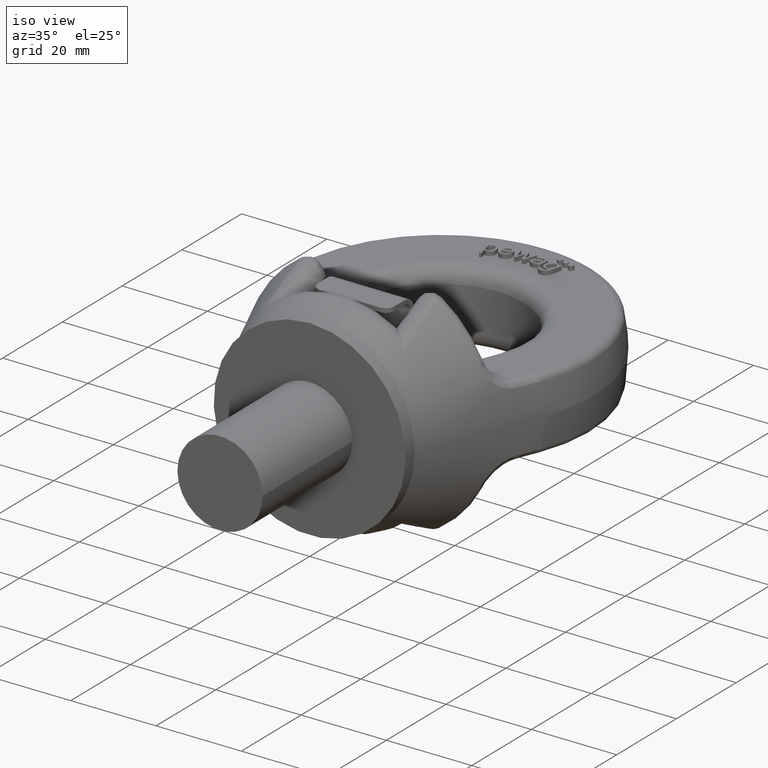
[diagram: clean part render]
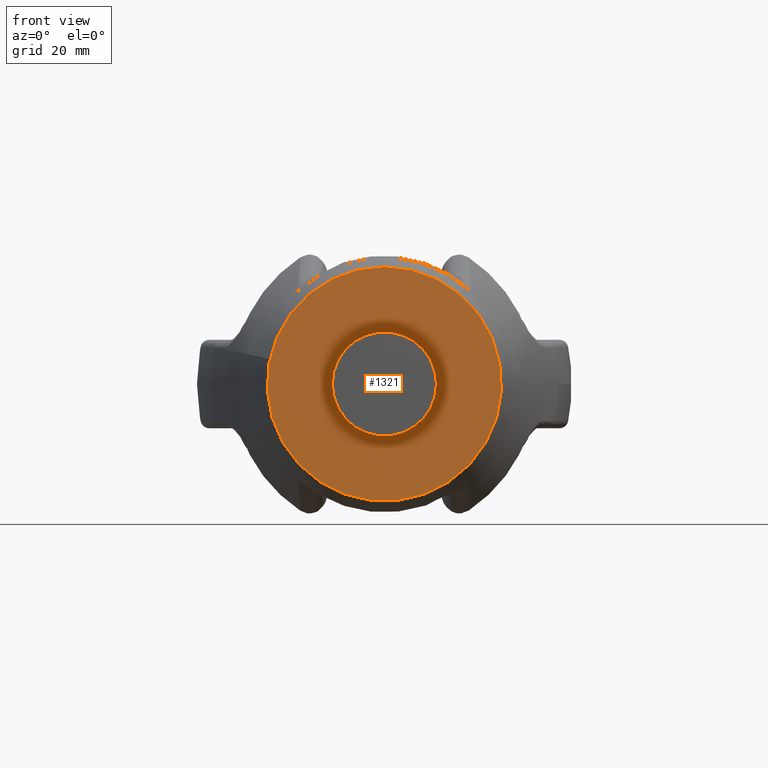
[diagram: tour spotlight — one face highlighted and labeled with its STEP entity id]
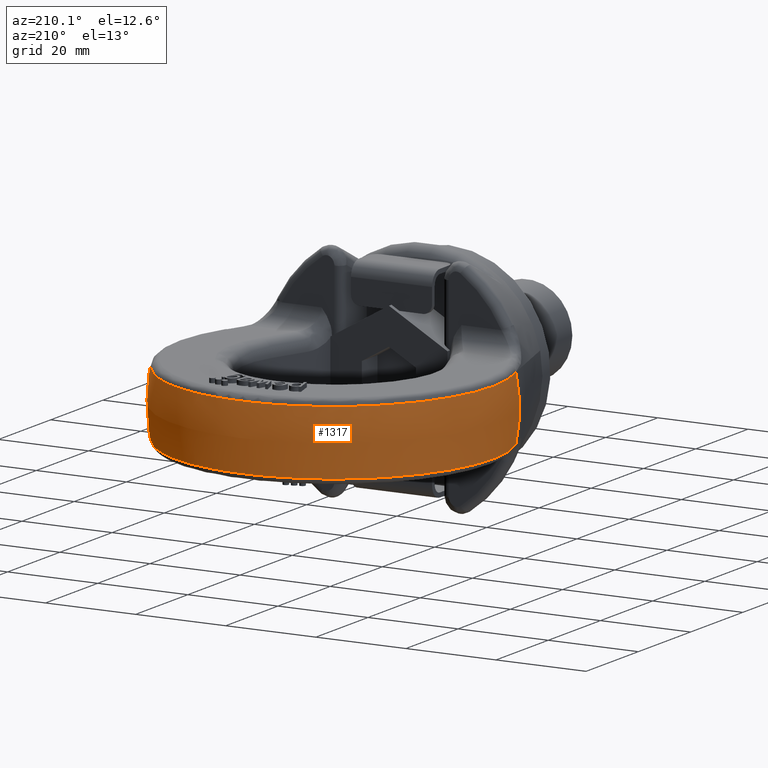
[diagram: tour spotlight — one face highlighted and labeled with its STEP entity id]
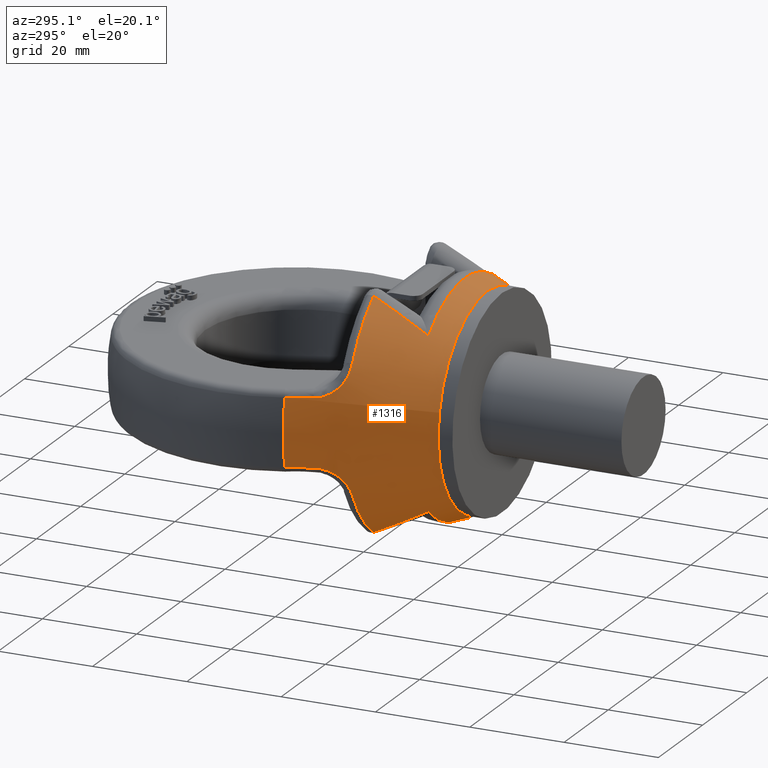
[diagram: tour spotlight — one face highlighted and labeled with its STEP entity id]
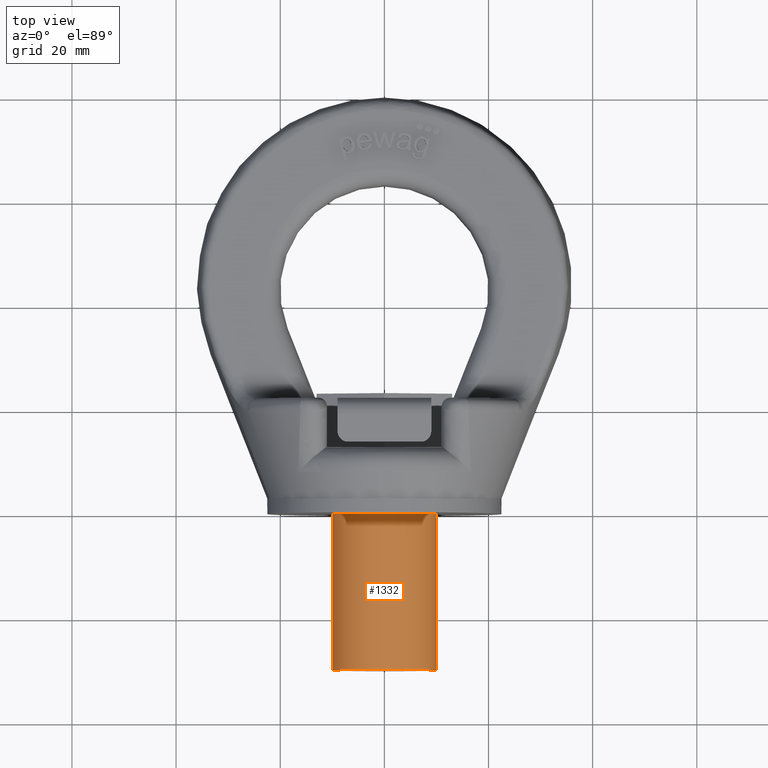
[diagram: tour spotlight — one face highlighted and labeled with its STEP entity id]
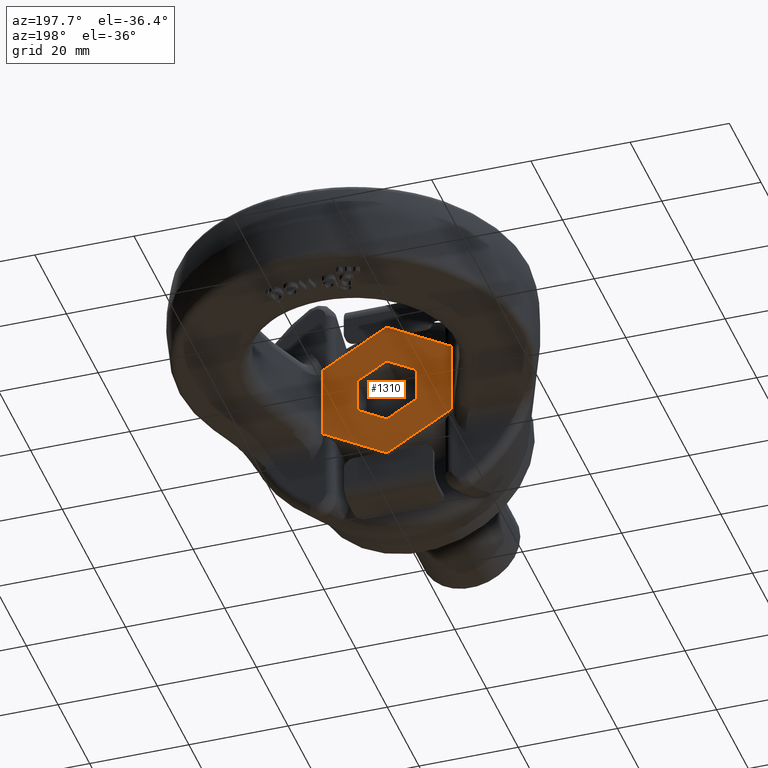
[diagram: tour spotlight — one face highlighted and labeled with its STEP entity id]
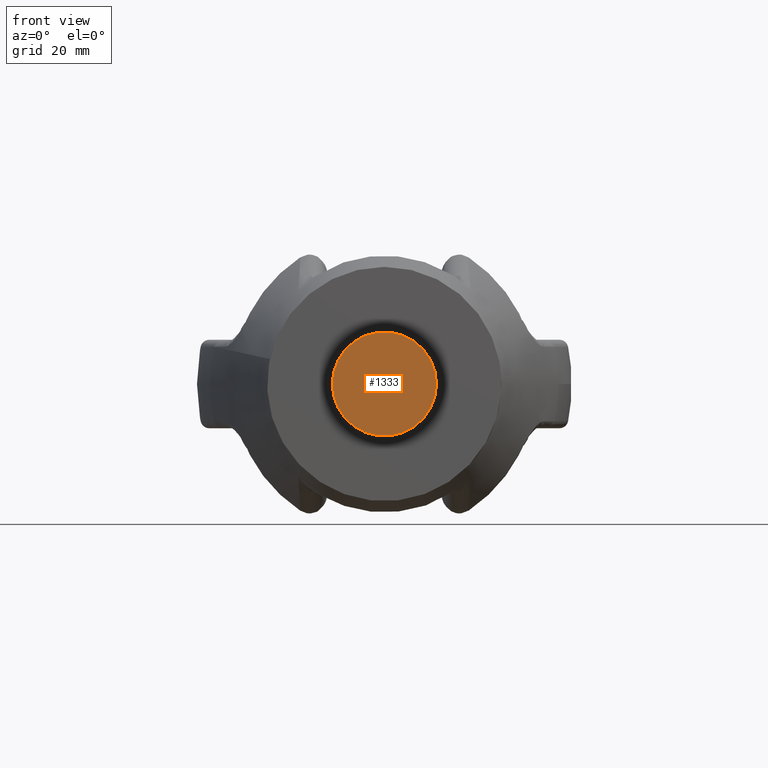
[diagram: tour spotlight — one face highlighted and labeled with its STEP entity id]
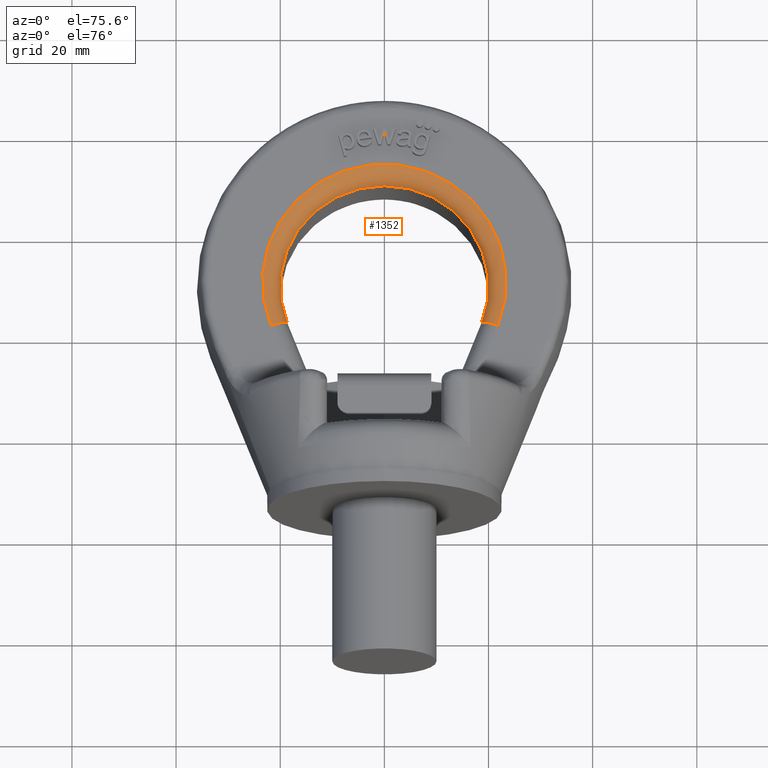
[diagram: tour spotlight — one face highlighted and labeled with its STEP entity id]
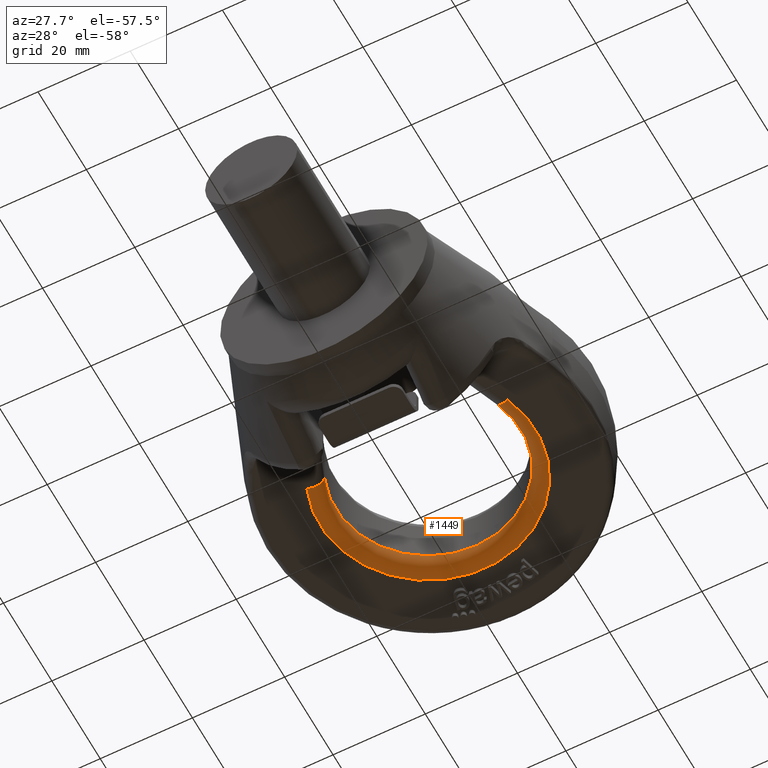
[diagram: tour spotlight — one face highlighted and labeled with its STEP entity id]
A machine part: a face-by-face anatomy tour. The part has 239 B-rep faces; the first image is the clean iso view, then the 8 largest visible faces are spotlighted one at a time (largest first), each with its STEP entity span.

Face 1 — front view, entity #1321. In plain terms, the highlighted planar face has unit normal (0, 1, 0).
Definition (entity closure, byte-faithful):
#1321=ADVANCED_FACE('',(#1769,#1770),#1557,.F.);
#1557=PLANE('',#5158);
#1689=CIRCLE('',#5156,22.5000000000001);
#1690=CIRCLE('',#5157,10.);
#1769=FACE_BOUND('',#1834,.T.);
#1770=FACE_BOUND('',#1835,.T.);
#1834=EDGE_LOOP('',(#2851));
#1835=EDGE_LOOP('',(#2852));
#2851=ORIENTED_EDGE('',*,*,#4407,.F.);
#2852=ORIENTED_EDGE('',*,*,#4408,.T.);
#4011=VERTEX_POINT('',#6879);
#4012=VERTEX_POINT('',#6881);
#4407=EDGE_CURVE('',#4011,#4011,#1689,.T.);
#4408=EDGE_CURVE('',#4012,#4012,#1690,.T.);
#5156=AXIS2_PLACEMENT_3D('',#6878,#5531,#5532);
#5157=AXIS2_PLACEMENT_3D('',#6880,#5533,#5534);
#5158=AXIS2_PLACEMENT_3D('',#6882,#5535,#5536);
#5531=DIRECTION('',(0.,1.,0.));
#5532=DIRECTION('',(0.,0.,1.));
#5533=DIRECTION('',(0.,1.,0.));
#5534=DIRECTION('',(1.,0.,6.12323399573677E-17));
#5535=DIRECTION('',(0.,1.,0.));
#5536=DIRECTION('',(0.,0.,1.));
#6878=CARTESIAN_POINT('',(-1.27403500852703E-13,0.,1.89464579043091E-14));
#6879=CARTESIAN_POINT('',(-1.27403500852703E-13,0.,22.5000000000001));
#6880=CARTESIAN_POINT('',(0.,0.,0.));
#6881=CARTESIAN_POINT('',(10.,0.,6.12323399573677E-16));
#6882=CARTESIAN_POINT('',(0.,0.,0.));

Face 2 — auxiliary view, entity #1317. In plain terms, the highlighted spherical surface has radius 36 mm.
Definition (entity closure, byte-faithful):
#1089=SPHERICAL_SURFACE('',#5146,36.);
#1096=FACE_OUTER_BOUND('',#1830,.T.);
#1317=ADVANCED_FACE('',(#1096),#1089,.T.);
#1676=CIRCLE('',#5134,33.4777571215615);
#1680=CIRCLE('',#5138,33.4777571215615);
#1685=CIRCLE('',#5144,35.285448225336);
#1686=CIRCLE('',#5145,35.285448225336);
#1830=EDGE_LOOP('',(#2831,#2832,#2833,#2834));
#2831=ORIENTED_EDGE('',*,*,#4372,.F.);
#2832=ORIENTED_EDGE('',*,*,#4393,.T.);
#2833=ORIENTED_EDGE('',*,*,#4382,.F.);
#2834=ORIENTED_EDGE('',*,*,#4394,.T.);
#3982=VERTEX_POINT('',#6754);
#3983=VERTEX_POINT('',#6755);
#3992=VERTEX_POINT('',#6801);
#3993=VERTEX_POINT('',#6803);
#4372=EDGE_CURVE('',#3982,#3983,#1676,.T.);
#4382=EDGE_CURVE('',#3992,#3993,#1680,.T.);
#4393=EDGE_CURVE('',#3982,#3993,#1685,.T.);
#4394=EDGE_CURVE('',#3992,#3983,#1686,.T.);
#5134=AXIS2_PLACEMENT_3D('',#6753,#5481,#5482);
#5138=AXIS2_PLACEMENT_3D('',#6802,#5489,#5490);
#5144=AXIS2_PLACEMENT_3D('',#6852,#5501,#5502);
#5145=AXIS2_PLACEMENT_3D('',#6853,#5503,#5504);
#5146=AXIS2_PLACEMENT_3D('',#6854,#5505,#5506);
#5481=DIRECTION('',(-1.59254376065879E-15,-1.,0.));
#5482=DIRECTION('',(1.,-1.55451585631424E-15,0.));
#5489=DIRECTION('',(-1.59254376065879E-15,-1.,0.));
#5490=DIRECTION('',(1.,-1.55451585631424E-15,0.));
#5501=DIRECTION('',(0.,-1.27553196763001E-16,-1.));
#5502=DIRECTION('',(0.,1.,-1.22906436167305E-16));
#5503=DIRECTION('',(-2.34291072916505E-15,-1.27553196763001E-16,1.));
#5504=DIRECTION('',(-2.61990826190524E-31,1.,1.22906436167305E-16));
#5505=DIRECTION('',(-1.53131142070142E-15,-1.,0.));
#5506=DIRECTION('',(1.,-1.5419764230905E-15,0.));
#6753=CARTESIAN_POINT('',(-7.8413376999715E-14,30.7621837862228,0.));
#6754=CARTESIAN_POINT('',(-32.708150029513,30.7621837862228,7.13702623906708));
#6755=CARTESIAN_POINT('',(-32.7081500295129,30.7621837862227,-7.13702623906714));
#6801=CARTESIAN_POINT('',(32.7081500295131,30.7621837862228,-7.13702623906701));
#6802=CARTESIAN_POINT('',(-7.8413376999715E-14,30.7621837862228,0.));
#6803=CARTESIAN_POINT('',(32.7081500295129,30.7621837862227,7.13702623906706));
#6852=CARTESIAN_POINT('',(-6.34413156928674E-17,44.,7.13702623906706));
#6853=CARTESIAN_POINT('',(1.67848566655356E-14,44.,-7.13702623906706));
#6854=CARTESIAN_POINT('',(-6.34413156928674E-17,44.,0.));

Face 3 — auxiliary view, entity #1316. In plain terms, the highlighted conical surface has half-angle 21.575 deg.
Definition (entity closure, byte-faithful):
#1090=CONICAL_SURFACE('',#5143,21.313736281761,21.5748946992419);
#1316=ADVANCED_FACE('',(#1767,#1768),#1090,.T.);
#1676=CIRCLE('',#5134,33.4777571215615);
#1677=CIRCLE('',#5135,29.0936020729451);
#1678=CIRCLE('',#5136,24.4176988226178);
#1679=CIRCLE('',#5137,29.0936020729451);
#1680=CIRCLE('',#5138,33.4777571215615);
#1681=CIRCLE('',#5139,29.0936020729451);
#1682=CIRCLE('',#5140,24.4176988226178);
#1683=CIRCLE('',#5141,29.0936020729451);
#1684=CIRCLE('',#5142,22.5000000000001);
#1767=FACE_BOUND('',#1828,.T.);
#1768=FACE_BOUND('',#1829,.T.);
#1828=EDGE_LOOP('',(#2810,#2811,#2812,#2813,#2814,#2815,#2816,#2817,#2818,
#2819,#2820,#2821,#2822,#2823,#2824,#2825,#2826,#2827,#2828,#2829));
#1829=EDGE_LOOP('',(#2830));
#2810=ORIENTED_EDGE('',*,*,#4372,.T.);
#2811=ORIENTED_EDGE('',*,*,#4373,.T.);
#2812=ORIENTED_EDGE('',*,*,#4374,.T.);
#2813=ORIENTED_EDGE('',*,*,#4375,.T.);
#2814=ORIENTED_EDGE('',*,*,#4376,.T.);
#2815=ORIENTED_EDGE('',*,*,#4377,.T.);
#2816=ORIENTED_EDGE('',*,*,#4378,.T.);
#2817=ORIENTED_EDGE('',*,*,#4379,.T.);
#2818=ORIENTED_EDGE('',*,*,#4380,.T.);
#2819=ORIENTED_EDGE('',*,*,#4381,.T.);
#2820=ORIENTED_EDGE('',*,*,#4382,.T.);
#2821=ORIENTED_EDGE('',*,*,#4383,.T.);
#2822=ORIENTED_EDGE('',*,*,#4384,.T.);
#2823=ORIENTED_EDGE('',*,*,#4385,.T.);
#2824=ORIENTED_EDGE('',*,*,#4386,.T.);
#2825=ORIENTED_EDGE('',*,*,#4387,.T.);
#2826=ORIENTED_EDGE('',*,*,#4388,.T.);
#2827=ORIENTED_EDGE('',*,*,#4389,.T.);
#2828=ORIENTED_EDGE('',*,*,#4390,.T.);
#2829=ORIENTED_EDGE('',*,*,#4391,.T.);
#2830=ORIENTED_EDGE('',*,*,#4392,.F.);
#3982=VERTEX_POINT('',#6754);
#3983=VERTEX_POINT('',#6755);
#3984=VERTEX_POINT('',#6763);
#3985=VERTEX_POINT('',#6770);
#3986=VERTEX_POINT('',#6772);
#3987=VERTEX_POINT('',#6777);
#3988=VERTEX_POINT('',#6779);
#3989=VERTEX_POINT('',#6784);
#3990=VERTEX_POINT('',#6786);
#3991=VERTEX_POINT('',#6793);
#3992=VERTEX_POINT('',#6801);
#3993=VERTEX_POINT('',#6803);
#3994=VERTEX_POINT('',#6811);
#3995=VERTEX_POINT('',#6818);
#3996=VERTEX_POINT('',#6820);
#3997=VERTEX_POINT('',#6825);
#3998=VERTEX_POINT('',#6827);
#3999=VERTEX_POINT('',#6832);
#4000=VERTEX_POINT('',#6834);
#4001=VERTEX_POINT('',#6841);
#4002=VERTEX_POINT('',#6850);
#4372=EDGE_CURVE('',#3982,#3983,#1676,.T.);
#4373=EDGE_CURVE('',#3983,#3984,#4887,.T.);
#4374=EDGE_CURVE('',#3984,#3985,#4888,.T.);
#4375=EDGE_CURVE('',#3985,#3986,#1677,.T.);
#4376=EDGE_CURVE('',#3986,#3987,#4889,.T.);
#4377=EDGE_CURVE('',#3987,#3988,#1678,.T.);
#4378=EDGE_CURVE('',#3988,#3989,#4890,.T.);
#4379=EDGE_CURVE('',#3989,#3990,#1679,.T.);
#4380=EDGE_CURVE('',#3990,#3991,#4891,.T.);
#4381=EDGE_CURVE('',#3991,#3992,#4892,.T.);
#4382=EDGE_CURVE('',#3992,#3993,#1680,.T.);
#4383=EDGE_CURVE('',#3993,#3994,#4893,.T.);
#4384=EDGE_CURVE('',#3994,#3995,#4894,.T.);
#4385=EDGE_CURVE('',#3995,#3996,#1681,.T.);
#4386=EDGE_CURVE('',#3996,#3997,#4895,.T.);
#4387=EDGE_CURVE('',#3997,#3998,#1682,.T.);
#4388=EDGE_CURVE('',#3998,#3999,#4896,.T.);
#4389=EDGE_CURVE('',#3999,#4000,#1683,.T.);
#4390=EDGE_CURVE('',#4000,#4001,#4897,.T.);
#4391=EDGE_CURVE('',#4001,#3982,#4898,.T.);
#4392=EDGE_CURVE('',#4002,#4002,#1684,.T.);
#4887=B_SPLINE_CURVE_WITH_KNOTS('',3,(#6756,#6757,#6758,#6759,#6760,#6761,
#6762),.UNSPECIFIED.,.F.,.F.,(4,3,4),(0.,0.613124126036316,1.),
 .UNSPECIFIED.);
#4888=B_SPLINE_CURVE_WITH_KNOTS('',3,(#6764,#6765,#6766,#6767,#6768,#6769),
 .UNSPECIFIED.,.F.,.F.,(4,2,4),(0.,0.5,1.),.UNSPECIFIED.);
#4889=B_SPLINE_CURVE_WITH_KNOTS('',3,(#6773,#6774,#6775,#6776),
 .UNSPECIFIED.,.F.,.F.,(4,4),(0.,1.),.UNSPECIFIED.);
#4890=B_SPLINE_CURVE_WITH_KNOTS('',3,(#6780,#6781,#6782,#6783),
 .UNSPECIFIED.,.F.,.F.,(4,4),(0.,1.),.UNSPECIFIED.);
#4891=B_SPLINE_CURVE_WITH_KNOTS('',3,(#6787,#6788,#6789,#6790,#6791,#6792),
 .UNSPECIFIED.,.F.,.F.,(4,2,4),(0.,0.5,1.),.UNSPECIFIED.);
#4892=B_SPLINE_CURVE_WITH_KNOTS('',3,(#6794,#6795,#6796,#6797,#6798,#6799,
#6800),.UNSPECIFIED.,.F.,.F.,(4,3,4),(0.,0.613124146047013,1.),
 .UNSPECIFIED.);
#4893=B_SPLINE_CURVE_WITH_KNOTS('',3,(#6804,#6805,#6806,#6807,#6808,#6809,
#6810),.UNSPECIFIED.,.F.,.F.,(4,3,4),(0.,0.613124126036316,1.),
 .UNSPECIFIED.);
#4894=B_SPLINE_CURVE_WITH_KNOTS('',3,(#6812,#6813,#6814,#6815,#6816,#6817),
 .UNSPECIFIED.,.F.,.F.,(4,2,4),(0.,0.5,1.),.UNSPECIFIED.);
#4895=B_SPLINE_CURVE_WITH_KNOTS('',3,(#6821,#6822,#6823,#6824),
 .UNSPECIFIED.,.F.,.F.,(4,4),(0.,1.),.UNSPECIFIED.);
#4896=B_SPLINE_CURVE_WITH_KNOTS('',3,(#6828,#6829,#6830,#6831),
 .UNSPECIFIED.,.F.,.F.,(4,4),(0.,1.),.UNSPECIFIED.);
#4897=B_SPLINE_CURVE_WITH_KNOTS('',3,(#6835,#6836,#6837,#6838,#6839,#6840),
 .UNSPECIFIED.,.F.,.F.,(4,2,4),(0.,0.5,1.),.UNSPECIFIED.);
#4898=B_SPLINE_CURVE_WITH_KNOTS('',3,(#6842,#6843,#6844,#6845,#6846,#6847,
#6848),.UNSPECIFIED.,.F.,.F.,(4,3,4),(0.,0.613124146047013,1.),
 .UNSPECIFIED.);
#5134=AXIS2_PLACEMENT_3D('',#6753,#5481,#5482);
#5135=AXIS2_PLACEMENT_3D('',#6771,#5483,#5484);
#5136=AXIS2_PLACEMENT_3D('',#6778,#5485,#5486);
#5137=AXIS2_PLACEMENT_3D('',#6785,#5487,#5488);
#5138=AXIS2_PLACEMENT_3D('',#6802,#5489,#5490);
#5139=AXIS2_PLACEMENT_3D('',#6819,#5491,#5492);
#5140=AXIS2_PLACEMENT_3D('',#6826,#5493,#5494);
#5141=AXIS2_PLACEMENT_3D('',#6833,#5495,#5496);
#5142=AXIS2_PLACEMENT_3D('',#6849,#5497,#5498);
#5143=AXIS2_PLACEMENT_3D('',#6851,#5499,#5500);
#5481=DIRECTION('',(-1.59254376065879E-15,-1.,0.));
#5482=DIRECTION('',(1.,-1.55451585631424E-15,0.));
#5483=DIRECTION('',(0.,-1.,0.));
#5484=DIRECTION('',(-2.34291072916505E-15,0.,1.));
#5485=DIRECTION('',(-1.5770213417971E-16,-1.,-3.69482022181868E-31));
#5486=DIRECTION('',(-1.,1.42087384120731E-16,-2.34291072916505E-15));
#5487=DIRECTION('',(0.,-1.,0.));
#5488=DIRECTION('',(-2.34291072916505E-15,0.,1.));
#5489=DIRECTION('',(-1.59254376065879E-15,-1.,0.));
#5490=DIRECTION('',(1.,-1.55451585631424E-15,0.));
#5491=DIRECTION('',(0.,-1.,0.));
#5492=DIRECTION('',(0.,0.,-1.));
#5493=DIRECTION('',(1.5770213417971E-16,-1.,0.));
#5494=DIRECTION('',(1.,1.42087384120731E-16,0.));
#5495=DIRECTION('',(0.,-1.,0.));
#5496=DIRECTION('',(0.,0.,-1.));
#5497=DIRECTION('',(0.,-1.,0.));
#5498=DIRECTION('',(0.,0.,1.));
#5499=DIRECTION('',(1.59254376065879E-15,1.,0.));
#5500=DIRECTION('',(-1.,1.53185663885087E-15,0.));
#6753=CARTESIAN_POINT('',(-7.8413376999715E-14,30.7621837862228,0.));
#6754=CARTESIAN_POINT('',(-32.708150029513,30.7621837862228,7.13702623906708));
#6755=CARTESIAN_POINT('',(-32.7081500295129,30.7621837862227,-7.13702623906714));
#6756=CARTESIAN_POINT('',(-32.7081500295129,30.7621837862227,-7.13702623906714));
#6757=CARTESIAN_POINT('',(-32.2821451953788,29.7119717622177,-7.1414140986364));
#6758=CARTESIAN_POINT('',(-31.855753008703,28.6619174500538,-7.14597240335738));
#6759=CARTESIAN_POINT('',(-31.428920201297,27.6120432397902,-7.15072261673638));
#6760=CARTESIAN_POINT('',(-31.1595924798111,26.9495819106914,-7.15371995931114));
#6761=CARTESIAN_POINT('',(-30.8900891293826,26.2871922933749,-7.1567937730321));
#6762=CARTESIAN_POINT('',(-30.6203947195171,25.6248809010161,-7.15995019721831));
#6763=CARTESIAN_POINT('',(-30.6203947195171,25.6248809010161,-7.15995019721831));
#6764=CARTESIAN_POINT('',(-30.6203947195171,25.6248809010161,-7.15995019721831));
#6765=CARTESIAN_POINT('',(-29.9340569580514,23.9393831606229,-7.16798289285811));
#6766=CARTESIAN_POINT('',(-29.133692721094,22.3836847653473,-7.94115087245221));
#6767=CARTESIAN_POINT('',(-27.4789415659989,20.2495336874216,-10.32194340184));
#6768=CARTESIAN_POINT('',(-26.6220088208332,19.6748809010161,-11.8743530580883));
#6769=CARTESIAN_POINT('',(-25.780934832253,19.6748809010161,-13.482621434795));
#6770=CARTESIAN_POINT('',(-25.780934832253,19.6748809010161,-13.482621434795));
#6771=CARTESIAN_POINT('',(9.60703920320851E-14,19.6748809010161,2.25084352247065E-28));
#6772=CARTESIAN_POINT('',(-16.1557487440052,19.6748809010161,-24.1956496936835));
#6773=CARTESIAN_POINT('',(-16.1557487440052,19.6748809010161,-24.1956496936835));
#6774=CARTESIAN_POINT('',(-16.2627841779964,15.6769239714854,-22.2232849505894));
#6775=CARTESIAN_POINT('',(-16.3879469988866,11.7153878183673,-20.1806455071207));
#6776=CARTESIAN_POINT('',(-16.5419806676346,7.84976180203214,-17.9607040893076));
#6777=CARTESIAN_POINT('',(-16.5419806676346,7.84976180203214,-17.9607040893076));
#6778=CARTESIAN_POINT('',(1.14902411672219E-13,7.84976180203215,2.69206093113781E-28));
#6779=CARTESIAN_POINT('',(16.5419806676346,7.84976180203217,-17.9607040893078));
#6780=CARTESIAN_POINT('',(16.5419806676346,7.84976180203217,-17.9607040893078));
#6781=CARTESIAN_POINT('',(16.387947001149,11.7153877615903,-20.1806454745151));
#6782=CARTESIAN_POINT('',(16.2627841770797,15.6769240057269,-22.2232849674823));
#6783=CARTESIAN_POINT('',(16.1557487440053,19.674880901016,-24.1956496936835));
#6784=CARTESIAN_POINT('',(16.1557487440053,19.674880901016,-24.1956496936835));
#6785=CARTESIAN_POINT('',(9.60703920320851E-14,19.6748809010161,2.25084352247065E-28));
#6786=CARTESIAN_POINT('',(25.7809348322532,19.6748809010161,-13.4826214347949));
#6787=CARTESIAN_POINT('',(25.7809348322532,19.6748809010161,-13.4826214347949));
#6788=CARTESIAN_POINT('',(26.6204507088519,19.6748809010161,-11.8773324181222));
#6789=CARTESIAN_POINT('',(27.4849102580278,20.2555090834971,-10.3121883731568));
#6790=CARTESIAN_POINT('',(29.1360298461373,22.3884301613274,-7.93896169562291));
#6791=CARTESIAN_POINT('',(29.9353727763975,23.9426145271212,-7.16796749290639));
#6792=CARTESIAN_POINT('',(30.6203947195173,25.6248809010161,-7.15995019721817));
#6793=CARTESIAN_POINT('',(30.6203947195173,25.6248809010161,-7.15995019721817));
#6794=CARTESIAN_POINT('',(30.6203947195173,25.6248809010161,-7.15995019721817));
#6795=CARTESIAN_POINT('',(31.0478086682363,26.6745175161425,-7.15494786985834));
#6796=CARTESIAN_POINT('',(31.4747432935279,27.7243504137917,-7.15015283647079));
#6797=CARTESIAN_POINT('',(31.9012580687729,28.7743545144952,-7.145541366412));
#6798=CARTESIAN_POINT('',(32.1703850962735,29.4368977577474,-7.14263156984371));
#6799=CARTESIAN_POINT('',(32.4393447636948,30.0995093288964,-7.13979493947457));
#6800=CARTESIAN_POINT('',(32.7081500295131,30.7621837862228,-7.13702623906701));
#6801=CARTESIAN_POINT('',(32.7081500295131,30.7621837862228,-7.13702623906701));
#6802=CARTESIAN_POINT('',(-7.8413376999715E-14,30.7621837862228,0.));
#6803=CARTESIAN_POINT('',(32.7081500295129,30.7621837862227,7.13702623906706));
#6804=CARTESIAN_POINT('',(32.7081500295129,30.7621837862227,7.13702623906706));
#6805=CARTESIAN_POINT('',(32.2821451953788,29.7119717622177,7.14141409863632));
#6806=CARTESIAN_POINT('',(31.855753008703,28.6619174500538,7.14597240335731));
#6807=CARTESIAN_POINT('',(31.428920201297,27.6120432397902,7.15072261673631));
#6808=CARTESIAN_POINT('',(31.1595924798111,26.9495819106914,7.15371995931107));
#6809=CARTESIAN_POINT('',(30.8900891293826,26.2871922933749,7.15679377303203));
#6810=CARTESIAN_POINT('',(30.6203947195172,25.6248809010161,7.15995019721824));
#6811=CARTESIAN_POINT('',(30.6203947195172,25.6248809010161,7.15995019721824));
#6812=CARTESIAN_POINT('',(30.6203947195172,25.6248809010161,7.15995019721824));
#6813=CARTESIAN_POINT('',(29.9340569580514,23.9393831606229,7.16798289285803));
#6814=CARTESIAN_POINT('',(29.133692721094,22.3836847653473,7.94115087245214));
#6815=CARTESIAN_POINT('',(27.4789415659989,20.2495336874216,10.3219434018399));
#6816=CARTESIAN_POINT('',(26.6220088208332,19.6748809010161,11.8743530580882));
#6817=CARTESIAN_POINT('',(25.780934832253,19.6748809010161,13.482621434795));
#6818=CARTESIAN_POINT('',(25.780934832253,19.6748809010161,13.482621434795));
#6819=CARTESIAN_POINT('',(-9.60703920320851E-14,19.6748809010161,0.));
#6820=CARTESIAN_POINT('',(16.1557487440053,19.6748809010161,24.1956496936834));
#6821=CARTESIAN_POINT('',(16.1557487440053,19.6748809010161,24.1956496936834));
#6822=CARTESIAN_POINT('',(16.2627841779964,15.6769239714854,22.2232849505894));
#6823=CARTESIAN_POINT('',(16.3879469988866,11.7153878183673,20.1806455071207));
#6824=CARTESIAN_POINT('',(16.5419806676346,7.84976180203214,17.9607040893076));
#6825=CARTESIAN_POINT('',(16.5419806676346,7.84976180203214,17.9607040893076));
#6826=CARTESIAN_POINT('',(-1.14902411672219E-13,7.84976180203215,0.));
#6827=CARTESIAN_POINT('',(-16.5419806676346,7.84976180203217,17.9607040893078));
#6828=CARTESIAN_POINT('',(-16.5419806676346,7.84976180203217,17.9607040893078));
#6829=CARTESIAN_POINT('',(-16.387947001149,11.7153877615903,20.1806454745151));
#6830=CARTESIAN_POINT('',(-16.2627841770797,15.6769240057269,22.2232849674823));
#6831=CARTESIAN_POINT('',(-16.1557487440053,19.674880901016,24.1956496936835));
#6832=CARTESIAN_POINT('',(-16.1557487440053,19.674880901016,24.1956496936835));
#6833=CARTESIAN_POINT('',(-9.60703920320851E-14,19.6748809010161,0.));
#6834=CARTESIAN_POINT('',(-25.7809348322532,19.6748809010161,13.482621434795));
#6835=CARTESIAN_POINT('',(-25.7809348322532,19.6748809010161,13.482621434795));
#6836=CARTESIAN_POINT('',(-26.6204507088519,19.6748809010161,11.8773324181222));
#6837=CARTESIAN_POINT('',(-27.4849102580278,20.2555090834971,10.3121883731569));
#6838=CARTESIAN_POINT('',(-29.1360298461373,22.3884301613274,7.93896169562298));
#6839=CARTESIAN_POINT('',(-29.9353727763975,23.9426145271212,7.16796749290646));
#6840=CARTESIAN_POINT('',(-30.6203947195173,25.6248809010161,7.15995019721824));
#6841=CARTESIAN_POINT('',(-30.6203947195173,25.6248809010161,7.15995019721824));
#6842=CARTESIAN_POINT('',(-30.6203947195173,25.6248809010161,7.15995019721824));
#6843=CARTESIAN_POINT('',(-31.0478086682363,26.6745175161425,7.15494786985842));
#6844=CARTESIAN_POINT('',(-31.4747432935279,27.7243504137917,7.15015283647086));
#6845=CARTESIAN_POINT('',(-31.9012580687729,28.7743545144952,7.14554136641207));
#6846=CARTESIAN_POINT('',(-32.1703850962735,29.4368977577474,7.14263156984379));
#6847=CARTESIAN_POINT('',(-32.4393447636947,30.0995093288964,7.13979493947464));
#6848=CARTESIAN_POINT('',(-32.708150029513,30.7621837862228,7.13702623906708));
#6849=CARTESIAN_POINT('',(-1.27403500852703E-13,3.,1.89464579043091E-14));
#6850=CARTESIAN_POINT('',(-1.27403500852703E-13,3.,22.5000000000001));
#6851=CARTESIAN_POINT('',(-1.27403500852703E-13,2.77555756156289E-14,0.));

Face 4 — top view, entity #1332. In plain terms, the highlighted cylindrical surface (bore or boss wall) has radius 10 mm, axis along (0, 1, 0).
Definition (entity closure, byte-faithful):
#1058=CYLINDRICAL_SURFACE('',#5172,10.);
#1332=ADVANCED_FACE('',(#1773,#1774),#1058,.T.);
#1690=CIRCLE('',#5157,10.);
#1691=CIRCLE('',#5171,10.);
#1773=FACE_BOUND('',#1847,.T.);
#1774=FACE_BOUND('',#1848,.T.);
#1847=EDGE_LOOP('',(#2899));
#1848=EDGE_LOOP('',(#2900));
#2899=ORIENTED_EDGE('',*,*,#4427,.T.);
#2900=ORIENTED_EDGE('',*,*,#4408,.F.);
#4012=VERTEX_POINT('',#6881);
#4019=VERTEX_POINT('',#6918);
#4408=EDGE_CURVE('',#4012,#4012,#1690,.T.);
#4427=EDGE_CURVE('',#4019,#4019,#1691,.T.);
#5157=AXIS2_PLACEMENT_3D('',#6880,#5533,#5534);
#5171=AXIS2_PLACEMENT_3D('',#6917,#5577,#5578);
#5172=AXIS2_PLACEMENT_3D('',#6919,#5579,#5580);
#5533=DIRECTION('',(0.,1.,0.));
#5534=DIRECTION('',(1.,0.,6.12323399573677E-17));
#5577=DIRECTION('',(0.,1.,0.));
#5578=DIRECTION('',(1.,0.,6.12323399573677E-17));
#5579=DIRECTION('',(0.,1.,0.));
#5580=DIRECTION('',(0.,0.,1.));
#6880=CARTESIAN_POINT('',(0.,0.,0.));
#6881=CARTESIAN_POINT('',(10.,0.,6.12323399573677E-16));
#6917=CARTESIAN_POINT('',(0.,-30.,0.));
#6918=CARTESIAN_POINT('',(10.,-30.,6.12323399573677E-16));
#6919=CARTESIAN_POINT('',(0.,-30.,0.));

Face 5 — auxiliary view, entity #1310. In plain terms, the highlighted planar face has unit normal (0, -1, 0).
Definition (entity closure, byte-faithful):
#1310=ADVANCED_FACE('',(#1765,#1766),#1549,.F.);
#1549=PLANE('',#5123);
#1765=FACE_BOUND('',#1821,.T.);
#1766=FACE_BOUND('',#1822,.T.);
#1821=EDGE_LOOP('',(#2755,#2756,#2757,#2758,#2759,#2760));
#1822=EDGE_LOOP('',(#2761,#2762,#2763,#2764,#2765,#2766));
#2113=LINE('',#6529,#2393);
#2114=LINE('',#6532,#2394);
#2115=LINE('',#6534,#2395);
#2116=LINE('',#6536,#2396);
#2117=LINE('',#6538,#2397);
#2118=LINE('',#6540,#2398);
#2119=LINE('',#6541,#2399);
#2120=LINE('',#6544,#2400);
#2121=LINE('',#6546,#2401);
#2122=LINE('',#6548,#2402);
#2123=LINE('',#6550,#2403);
#2124=LINE('',#6552,#2404);
#2393=VECTOR('',#5423,1.);
#2394=VECTOR('',#5424,1.);
#2395=VECTOR('',#5425,1.);
#2396=VECTOR('',#5426,1.);
#2397=VECTOR('',#5427,1.);
#2398=VECTOR('',#5428,1.);
#2399=VECTOR('',#5429,1.);
#2400=VECTOR('',#5430,1.);
#2401=VECTOR('',#5431,1.);
#2402=VECTOR('',#5432,1.);
#2403=VECTOR('',#5433,1.);
#2404=VECTOR('',#5434,1.);
#2755=ORIENTED_EDGE('',*,*,#4319,.F.);
#2756=ORIENTED_EDGE('',*,*,#4320,.F.);
#2757=ORIENTED_EDGE('',*,*,#4321,.F.);
#2758=ORIENTED_EDGE('',*,*,#4322,.F.);
#2759=ORIENTED_EDGE('',*,*,#4323,.F.);
#2760=ORIENTED_EDGE('',*,*,#4324,.F.);
#2761=ORIENTED_EDGE('',*,*,#4325,.F.);
#2762=ORIENTED_EDGE('',*,*,#4326,.F.);
#2763=ORIENTED_EDGE('',*,*,#4327,.F.);
#2764=ORIENTED_EDGE('',*,*,#4328,.F.);
#2765=ORIENTED_EDGE('',*,*,#4329,.F.);
#2766=ORIENTED_EDGE('',*,*,#4330,.F.);
#3931=VERTEX_POINT('',#6530);
#3932=VERTEX_POINT('',#6531);
#3933=VERTEX_POINT('',#6533);
#3934=VERTEX_POINT('',#6535);
#3935=VERTEX_POINT('',#6537);
#3936=VERTEX_POINT('',#6539);
#3937=VERTEX_POINT('',#6542);
#3938=VERTEX_POINT('',#6543);
#3939=VERTEX_POINT('',#6545);
#3940=VERTEX_POINT('',#6547);
#3941=VERTEX_POINT('',#6549);
#3942=VERTEX_POINT('',#6551);
#4319=EDGE_CURVE('',#3931,#3932,#2113,.T.);
#4320=EDGE_CURVE('',#3933,#3931,#2114,.T.);
#4321=EDGE_CURVE('',#3934,#3933,#2115,.T.);
#4322=EDGE_CURVE('',#3935,#3934,#2116,.T.);
#4323=EDGE_CURVE('',#3936,#3935,#2117,.T.);
#4324=EDGE_CURVE('',#3932,#3936,#2118,.T.);
#4325=EDGE_CURVE('',#3937,#3938,#2119,.T.);
#4326=EDGE_CURVE('',#3939,#3937,#2120,.T.);
#4327=EDGE_CURVE('',#3940,#3939,#2121,.T.);
#4328=EDGE_CURVE('',#3941,#3940,#2122,.T.);
#4329=EDGE_CURVE('',#3942,#3941,#2123,.T.);
#4330=EDGE_CURVE('',#3938,#3942,#2124,.T.);
#5123=AXIS2_PLACEMENT_3D('',#6553,#5435,#5436);
#5423=DIRECTION('',(0.,0.,1.));
#5424=DIRECTION('',(0.86602540378444,0.,0.499999999999997));
#5425=DIRECTION('',(0.866025403784443,0.,-0.499999999999993));
#5426=DIRECTION('',(0.,0.,-1.));
#5427=DIRECTION('',(-0.866025403784441,0.,-0.499999999999995));
#5428=DIRECTION('',(-0.866025403784441,0.,0.499999999999995));
#5429=DIRECTION('',(-0.86602540378444,0.,-0.499999999999998));
#5430=DIRECTION('',(0.,0.,-1.));
#5431=DIRECTION('',(0.866025403784441,0.,-0.499999999999996));
#5432=DIRECTION('',(0.866025403784441,0.,0.499999999999996));
#5433=DIRECTION('',(0.,0.,1.));
#5434=DIRECTION('',(-0.866025403784442,0.,0.499999999999994));
#5435=DIRECTION('',(0.,-1.,0.));
#5436=DIRECTION('',(0.,0.,-1.));
#6529=CARTESIAN_POINT('',(13.,23.,-7.50555349946516));
#6530=CARTESIAN_POINT('',(13.,23.,-7.50555349946513));
#6531=CARTESIAN_POINT('',(13.,23.,7.50555349946516));
#6532=CARTESIAN_POINT('',(3.51696836444381E-14,23.,-15.0111069989302));
#6533=CARTESIAN_POINT('',(3.51696836444381E-14,23.,-15.0111069989302));
#6534=CARTESIAN_POINT('',(-13.,23.,-7.50555349946519));
#6535=CARTESIAN_POINT('',(-13.,23.,-7.50555349946519));
#6536=CARTESIAN_POINT('',(-13.,23.,7.50555349946516));
#6537=CARTESIAN_POINT('',(-13.,23.,7.50555349946516));
#6538=CARTESIAN_POINT('',(0.,23.,15.0111069989302));
#6539=CARTESIAN_POINT('',(0.,23.,15.0111069989302));
#6540=CARTESIAN_POINT('',(13.,23.,7.50555349946516));
#6541=CARTESIAN_POINT('',(1.62321616820483E-14,23.,-6.92820323027546));
#6542=CARTESIAN_POINT('',(6.00000000000001,23.,-3.46410161513773));
#6543=CARTESIAN_POINT('',(1.62321616820483E-14,23.,-6.92820323027546));
#6544=CARTESIAN_POINT('',(6.,23.,-3.46410161513774));
#6545=CARTESIAN_POINT('',(6.,23.,3.46410161513774));
#6546=CARTESIAN_POINT('',(6.,23.,3.46410161513774));
#6547=CARTESIAN_POINT('',(0.,23.,6.92820323027546));
#6548=CARTESIAN_POINT('',(0.,23.,6.92820323027546));
#6549=CARTESIAN_POINT('',(-6.,23.,3.46410161513774));
#6550=CARTESIAN_POINT('',(-6.,23.,3.46410161513775));
#6551=CARTESIAN_POINT('',(-5.99999999999999,23.,-3.46410161513776));
#6552=CARTESIAN_POINT('',(-5.99999999999999,23.,-3.46410161513776));
#6553=CARTESIAN_POINT('',(0.,23.,0.));

Face 6 — front view, entity #1333. In plain terms, the highlighted planar face has unit normal (0, 1, 0).
Definition (entity closure, byte-faithful):
#1109=FACE_OUTER_BOUND('',#1849,.T.);
#1333=ADVANCED_FACE('',(#1109),#1567,.F.);
#1567=PLANE('',#5173);
#1691=CIRCLE('',#5171,10.);
#1849=EDGE_LOOP('',(#2901));
#2901=ORIENTED_EDGE('',*,*,#4427,.F.);
#4019=VERTEX_POINT('',#6918);
#4427=EDGE_CURVE('',#4019,#4019,#1691,.T.);
#5171=AXIS2_PLACEMENT_3D('',#6917,#5577,#5578);
#5173=AXIS2_PLACEMENT_3D('',#6920,#5581,#5582);
#5577=DIRECTION('',(0.,1.,0.));
#5578=DIRECTION('',(1.,0.,6.12323399573677E-17));
#5581=DIRECTION('',(0.,1.,0.));
#5582=DIRECTION('',(0.,0.,1.));
#6917=CARTESIAN_POINT('',(0.,-30.,0.));
#6918=CARTESIAN_POINT('',(10.,-30.,6.12323399573677E-16));
#6920=CARTESIAN_POINT('',(0.,-30.,0.));

Face 7 — auxiliary view, entity #1352. In plain terms, the highlighted toroidal blend (fillet) surface has major radius 23.4 mm and minor (blend) radius 3.4 mm.
Definition (entity closure, byte-faithful):
#1018=TOROIDAL_SURFACE('',#5198,23.4,3.4);
#1128=FACE_OUTER_BOUND('',#1868,.T.);
#1352=ADVANCED_FACE('',(#1128),#1018,.T.);
#1669=CIRCLE('',#5120,23.4);
#1687=CIRCLE('',#5147,20.);
#1703=CIRCLE('',#5195,3.4);
#1704=CIRCLE('',#5197,3.4);
#1868=EDGE_LOOP('',(#2976,#2977,#2978,#2979));
#2976=ORIENTED_EDGE('',*,*,#4447,.F.);
#2977=ORIENTED_EDGE('',*,*,#4396,.F.);
#2978=ORIENTED_EDGE('',*,*,#4448,.T.);
#2979=ORIENTED_EDGE('',*,*,#4296,.F.);
#3908=VERTEX_POINT('',#6399);
#3909=VERTEX_POINT('',#6400);
#4004=VERTEX_POINT('',#6857);
#4005=VERTEX_POINT('',#6859);
#4296=EDGE_CURVE('',#3908,#3909,#1669,.T.);
#4396=EDGE_CURVE('',#4004,#4005,#1687,.T.);
#4447=EDGE_CURVE('',#4005,#3908,#1703,.T.);
#4448=EDGE_CURVE('',#4004,#3909,#1704,.T.);
#5120=AXIS2_PLACEMENT_3D('',#6398,#5406,#5407);
#5147=AXIS2_PLACEMENT_3D('',#6858,#5508,#5509);
#5195=AXIS2_PLACEMENT_3D('',#7176,#5625,#5626);
#5197=AXIS2_PLACEMENT_3D('',#7178,#5629,#5630);
#5198=AXIS2_PLACEMENT_3D('',#7179,#5631,#5632);
#5406=DIRECTION('',(0.,-1.27553196763001E-16,-1.));
#5407=DIRECTION('',(0.,1.,-1.48266963758701E-16));
#5508=DIRECTION('',(0.,1.27553196763001E-16,1.));
#5509=DIRECTION('',(0.,1.,-1.30104260698261E-16));
#5625=DIRECTION('',(0.367717117049367,-0.929937697821151,0.));
#5626=DIRECTION('',(-0.929937697821151,-0.367717117049368,0.));
#5629=DIRECTION('',(0.367717117049368,0.92993769782115,0.));
#5630=DIRECTION('',(0.929937697821151,-0.367717117049368,0.));
#5631=DIRECTION('',(0.,-1.27553196763001E-16,-1.));
#5632=DIRECTION('',(0.,1.,-1.29456975819165E-16));
#6398=CARTESIAN_POINT('',(0.,43.,8.50000000000001));
#6399=CARTESIAN_POINT('',(-21.7605421290149,34.3954194610448,8.50000000000001));
#6400=CARTESIAN_POINT('',(21.7605421290149,34.3954194610447,8.50000000000001));
#6857=CARTESIAN_POINT('',(18.598753956423,35.6456576590126,5.10000000000001));
#6858=CARTESIAN_POINT('',(0.,43.,5.10000000000001));
#6859=CARTESIAN_POINT('',(-18.598753956423,35.6456576590126,5.10000000000001));
#7176=CARTESIAN_POINT('',(-21.7605421290149,34.3954194610448,5.10000000000001));
#7178=CARTESIAN_POINT('',(21.7605421290149,34.3954194610447,5.10000000000001));
#7179=CARTESIAN_POINT('',(0.,43.,5.10000000000001));

Face 8 — auxiliary view, entity #1449. In plain terms, the highlighted toroidal blend (fillet) surface has major radius 23.4 mm and minor (blend) radius 3.4 mm.
Definition (entity closure, byte-faithful):
#1023=TOROIDAL_SURFACE('',#5284,23.4,3.4);
#1217=FACE_OUTER_BOUND('',#1980,.T.);
#1449=ADVANCED_FACE('',(#1217),#1023,.T.);
#1688=CIRCLE('',#5148,20.);
#1712=CIRCLE('',#5247,23.4);
#1726=CIRCLE('',#5281,3.4);
#1727=CIRCLE('',#5283,3.4);
#1980=EDGE_LOOP('',(#3437,#3438,#3439,#3440));
#3437=ORIENTED_EDGE('',*,*,#4659,.F.);
#3438=ORIENTED_EDGE('',*,*,#4398,.F.);
#3439=ORIENTED_EDGE('',*,*,#4660,.T.);
#3440=ORIENTED_EDGE('',*,*,#4600,.F.);
#4003=VERTEX_POINT('',#6856);
#4006=VERTEX_POINT('',#6861);
#4117=VERTEX_POINT('',#8209);
#4118=VERTEX_POINT('',#8210);
#4398=EDGE_CURVE('',#4006,#4003,#1688,.T.);
#4600=EDGE_CURVE('',#4117,#4118,#1712,.T.);
#4659=EDGE_CURVE('',#4003,#4117,#1726,.T.);
#4660=EDGE_CURVE('',#4006,#4118,#1727,.T.);
#5148=AXIS2_PLACEMENT_3D('',#6862,#5511,#5512);
#5247=AXIS2_PLACEMENT_3D('',#8208,#5828,#5829);
#5281=AXIS2_PLACEMENT_3D('',#8647,#5917,#5918);
#5283=AXIS2_PLACEMENT_3D('',#8649,#5921,#5922);
#5284=AXIS2_PLACEMENT_3D('',#8650,#5923,#5924);
#5511=DIRECTION('',(2.34291072916505E-15,1.27553196763001E-16,-1.));
#5512=DIRECTION('',(-3.08148791101958E-31,1.,1.30104260698261E-16));
#5828=DIRECTION('',(-2.34291072916505E-15,-1.27553196763001E-16,1.));
#5829=DIRECTION('',(-2.63375035129878E-31,1.,1.48266963758701E-16));
#5917=DIRECTION('',(-0.367717117049367,-0.929937697821151,-8.61528378832602E-16));
#5918=DIRECTION('',(0.929937697821151,-0.367717117049368,2.29595754173401E-15));
#5921=DIRECTION('',(-0.367717117049368,0.92993769782115,-8.61528378832604E-16));
#5922=DIRECTION('',(-0.929937697821151,-0.367717117049368,-2.29595754173401E-15));
#5923=DIRECTION('',(-2.34291072916505E-15,-1.27553196763001E-16,1.));
#5924=DIRECTION('',(-2.87452230505558E-31,1.,1.29456975819165E-16));
#6856=CARTESIAN_POINT('',(18.598753956423,35.6456576590126,-5.09999999999996));
#6861=CARTESIAN_POINT('',(-18.598753956423,35.6456576590126,-5.10000000000005));
#6862=CARTESIAN_POINT('',(1.19488447187418E-14,43.,-5.10000000000001));
#8208=CARTESIAN_POINT('',(1.99147411979029E-14,43.,-8.50000000000001));
#8209=CARTESIAN_POINT('',(21.7605421290149,34.3954194610448,-8.49999999999996));
#8210=CARTESIAN_POINT('',(-21.7605421290149,34.3954194610447,-8.50000000000006));
#8647=CARTESIAN_POINT('',(21.7605421290149,34.3954194610448,-5.09999999999996));
#8649=CARTESIAN_POINT('',(-21.7605421290149,34.3954194610447,-5.10000000000006));
#8650=CARTESIAN_POINT('',(1.19488447187418E-14,43.,-5.10000000000001));